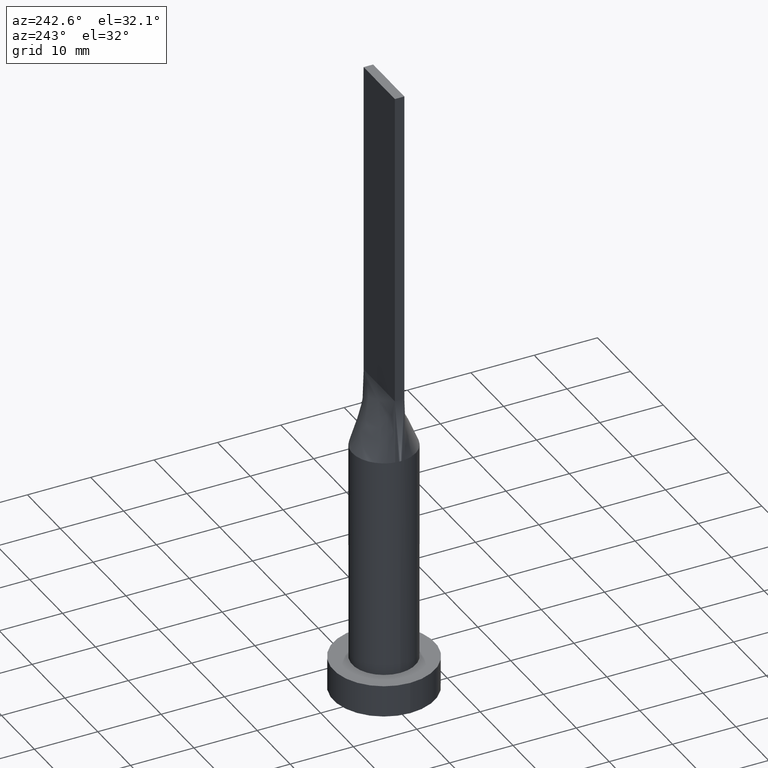
[diagram: clean part render]
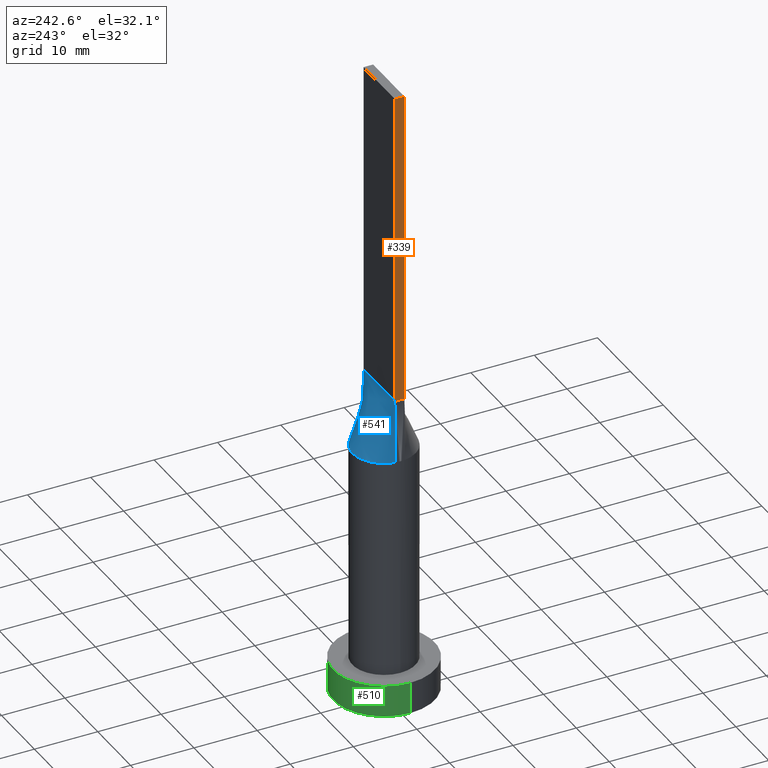
[diagram: same view with three faces highlighted in distinct colors, each labeled with its STEP entity id]
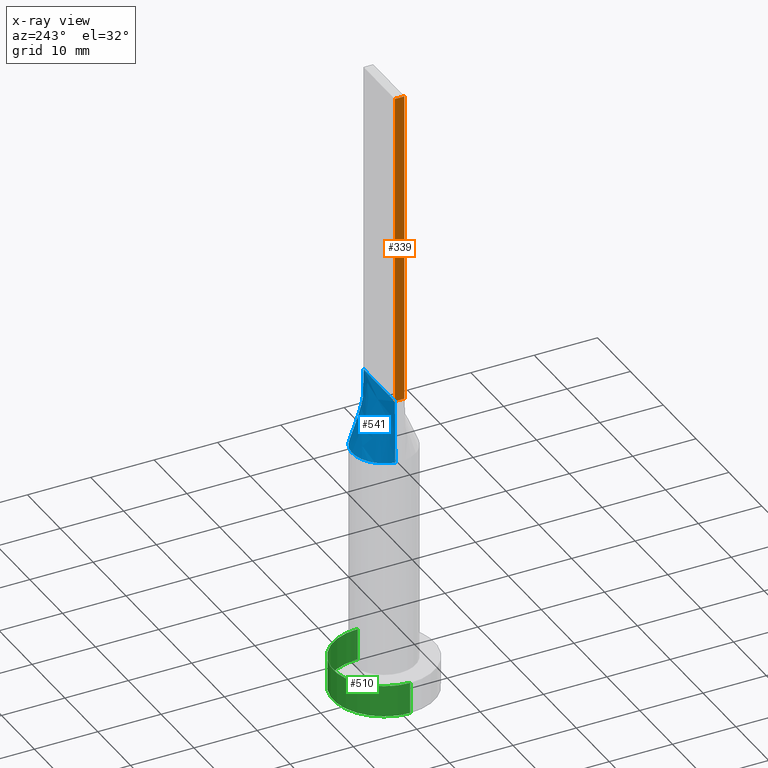
[diagram: x-ray of the same camera — body ghosted, the three highlighted faces saturated]
A machine part, auxiliary view with three faces highlighted in distinct colors.
The next image is the same camera in x-ray (body ghosted, the three faces saturated) — at least one of them is partly hidden behind the body in this view.
Their STEP definitions:

[orange] entity #339 — the highlighted planar face has unit normal (1, 0, -0).
#1 = DIRECTION ( 'NONE',  ( -0.000000000000000000, 0.000000000000000000, -1.000000000000000000 ) ) ;
#2 = CARTESIAN_POINT ( 'NONE',  ( -4.750000000000000000, 0.7500000000000002220, 100.0000000000000000 ) ) ;
#5 = DIRECTION ( 'NONE',  ( -0.000000000000000000, -0.000000000000000000, -1.000000000000000000 ) ) ;
#10 = CARTESIAN_POINT ( 'NONE',  ( -4.750000000000000000, 0.7500000000000002220, 100.0000000000000000 ) ) ;
#25 = CARTESIAN_POINT ( 'NONE',  ( -4.750000000000000000, 0.7500000000000002220, 50.00000000000000000 ) ) ;
#32 = CARTESIAN_POINT ( 'NONE',  ( -4.750000000000000000, -0.7499999999999991118, 50.00000000000000000 ) ) ;
#33 = VERTEX_POINT ( 'NONE', #2 ) ;
#49 = VECTOR ( 'NONE', #388, 1000.000000000000000 ) ;
#68 = ORIENTED_EDGE ( 'NONE', *, *, #367, .T. ) ;
#72 = ORIENTED_EDGE ( 'NONE', *, *, #420, .F. ) ;
#94 = VERTEX_POINT ( 'NONE', #514 ) ;
#140 = LINE ( 'NONE', #452, #361 ) ;
#149 = DIRECTION ( 'NONE',  ( -0.000000000000000000, -0.000000000000000000, -1.000000000000000000 ) ) ;
#206 = EDGE_CURVE ( 'NONE', #601, #443, #256, .T. ) ;
#236 = AXIS2_PLACEMENT_3D ( 'NONE', #585, #390, #1 ) ;
#256 = LINE ( 'NONE', #25, #318 ) ;
#277 = VECTOR ( 'NONE', #5, 1000.000000000000000 ) ;
#318 = VECTOR ( 'NONE', #520, 1000.000000000000000 ) ;
#339 = ADVANCED_FACE ( 'NONE', ( #403 ), #435, .F. ) ;
#361 = VECTOR ( 'NONE', #149, 1000.000000000000000 ) ;
#367 = EDGE_CURVE ( 'NONE', #33, #601, #449, .T. ) ;
#386 = EDGE_LOOP ( 'NONE', ( #483, #72, #531, #68 ) ) ;
#388 = DIRECTION ( 'NONE',  ( 0.000000000000000000, -1.000000000000000000, 0.000000000000000000 ) ) ;
#390 = DIRECTION ( 'NONE',  ( 1.000000000000000000, 0.000000000000000000, -0.000000000000000000 ) ) ;
#403 = FACE_OUTER_BOUND ( 'NONE', #386, .T. ) ;
#420 = EDGE_CURVE ( 'NONE', #94, #443, #140, .T. ) ;
#427 = LINE ( 'NONE', #616, #49 ) ;
#435 = PLANE ( 'NONE',  #236 ) ;
#443 = VERTEX_POINT ( 'NONE', #32 ) ;
#449 = LINE ( 'NONE', #10, #277 ) ;
#452 = CARTESIAN_POINT ( 'NONE',  ( -4.750000000000000000, -0.7499999999999991118, 100.0000000000000000 ) ) ;
#469 = CARTESIAN_POINT ( 'NONE',  ( -4.750000000000000000, 0.7500000000000002220, 50.00000000000000000 ) ) ;
#483 = ORIENTED_EDGE ( 'NONE', *, *, #206, .T. ) ;
#514 = CARTESIAN_POINT ( 'NONE',  ( -4.750000000000000000, -0.7499999999999991118, 100.0000000000000000 ) ) ;
#520 = DIRECTION ( 'NONE',  ( 0.000000000000000000, -1.000000000000000000, 0.000000000000000000 ) ) ;
#524 = EDGE_CURVE ( 'NONE', #33, #94, #427, .T. ) ;
#531 = ORIENTED_EDGE ( 'NONE', *, *, #524, .F. ) ;
#585 = CARTESIAN_POINT ( 'NONE',  ( -4.750000000000000000, 0.7500000000000002220, 100.0000000000000000 ) ) ;
#601 = VERTEX_POINT ( 'NONE', #469 ) ;
#616 = CARTESIAN_POINT ( 'NONE',  ( -4.750000000000000000, 0.7500000000000002220, 100.0000000000000000 ) ) ;

[blue] entity #541 — the highlighted face is a freeform B-spline surface patch.
#4 = CARTESIAN_POINT ( 'NONE',  ( 4.029217956433126524, 3.021257902548482477, 40.00000000000000711 ) ) ;
#7 = CARTESIAN_POINT ( 'NONE',  ( -4.750000000000000000, 0.7500000000000002220, 50.00000000000000000 ) ) ;
#9 = CARTESIAN_POINT ( 'NONE',  ( -4.753727492665067444, 1.629988260829202007, 40.00000000000001421 ) ) ;
#14 = CARTESIAN_POINT ( 'NONE',  ( 0.3560391241594590972, 5.000000000000001776, 40.00000000000000000 ) ) ;
#19 = CARTESIAN_POINT ( 'NONE',  ( 0.7119876437238013001, 4.961551549233180758, 40.00000000000001421 ) ) ;
#29 = ORIENTED_EDGE ( 'NONE', *, *, #589, .T. ) ;
#31 = CARTESIAN_POINT ( 'NONE',  ( 1.732223102076450250, 4.702695359254404295, 39.99999999999997868 ) ) ;
#38 = CARTESIAN_POINT ( 'NONE',  ( -0.7119876437238006339, 4.961551549233178982, 40.00000000000000711 ) ) ;
#39 = EDGE_CURVE ( 'NONE', #123, #601, #511, .T. ) ;
#41 = CARTESIAN_POINT ( 'NONE',  ( -3.958333333333336146, 0.7500000000000002220, 50.00000000000000000 ) ) ;
#46 = CARTESIAN_POINT ( 'NONE',  ( 4.938814826645345768, 0.7798128673650542853, 40.00000000000000000 ) ) ;
#53 = CARTESIAN_POINT ( 'NONE',  ( -2.177083333333339699, 0.7500000000000002220, 50.00000000000000000 ) ) ;
#57 = LINE ( 'NONE', #73, #347 ) ;
#62 = CARTESIAN_POINT ( 'NONE',  ( 1.732223102076450250, 4.702695359254404295, 39.99999999999997868 ) ) ;
#73 = CARTESIAN_POINT ( 'NONE',  ( 4.844407413322673328, 0.7649064336825270871, 45.00000000000000000 ) ) ;
#79 = CARTESIAN_POINT ( 'NONE',  ( 2.353781608410062454, 4.424438117685770777, 40.00000000000000000 ) ) ;
#82 = CARTESIAN_POINT ( 'NONE',  ( 4.753727492665065668, 1.629988260829201563, 40.00000000000001421 ) ) ;
#85 = CARTESIAN_POINT ( 'NONE',  ( -4.874625637456156291, 1.186344398896586716, 40.00000000000000000 ) ) ;
#89 = CARTESIAN_POINT ( 'NONE',  ( 0.1979166666666585250, 0.7500000000000001110, 50.00000000000000000 ) ) ;
#92 = CARTESIAN_POINT ( 'NONE',  ( -1.583333333333340587, 0.7500000000000002220, 50.00000000000000000 ) ) ;
#98 = CARTESIAN_POINT ( 'NONE',  ( -1.400150253878312823, 4.812847332616943419, 40.00000000000000711 ) ) ;
#102 = CARTESIAN_POINT ( 'NONE',  ( 1.583333333333324155, 0.7500000000000002220, 50.00000000000000000 ) ) ;
#123 = VERTEX_POINT ( 'NONE', #299 ) ;
#139 = CARTESIAN_POINT ( 'NONE',  ( 4.354166666666665186, 0.7500000000000002220, 50.00000000000000000 ) ) ;
#143 = CARTESIAN_POINT ( 'NONE',  ( 0.7916666666666568597, 0.7500000000000002220, 50.00000000000000000 ) ) ;
#153 = CARTESIAN_POINT ( 'NONE',  ( 4.332026455536839293, 2.547220758687718689, 40.00000000000000711 ) ) ;
#169 = EDGE_LOOP ( 'NONE', ( #29, #410, #615, #345 ) ) ;
#173 = CARTESIAN_POINT ( 'NONE',  ( -2.353781608410062010, 4.424438117685770777, 39.99999999999998579 ) ) ;
#175 = VERTEX_POINT ( 'NONE', #499 ) ;
#176 = CARTESIAN_POINT ( 'NONE',  ( -0.3560391241594593192, 5.000000000000000000, 39.99999999999998579 ) ) ;
#181 = CARTESIAN_POINT ( 'NONE',  ( 0.3958333333333243220, 0.7500000000000002220, 50.00000000000000000 ) ) ;
#184 = CARTESIAN_POINT ( 'NONE',  ( 0.9895833333333237114, 0.7500000000000002220, 50.00000000000000000 ) ) ;
#187 = CARTESIAN_POINT ( 'NONE',  ( 1.400150253878312823, 4.812847332616943419, 40.00000000000000711 ) ) ;
#190 = CARTESIAN_POINT ( 'NONE',  ( -4.938814826645345768, 0.7798128673650545073, 40.00000000000000000 ) ) ;
#196 = CARTESIAN_POINT ( 'NONE',  ( -2.353781608410062010, 4.424438117685770777, 39.99999999999998579 ) ) ;
#198 = CARTESIAN_POINT ( 'NONE',  ( 4.938814826645345768, 0.7798128673650538412, 40.00000000000000000 ) ) ;
#232 = CARTESIAN_POINT ( 'NONE',  ( -4.874625637456156291, 1.186344398896586716, 40.00000000000000000 ) ) ;
#237 = FACE_OUTER_BOUND ( 'NONE', #169, .T. ) ;
#239 = B_SPLINE_SURFACE_WITH_KNOTS ( 'NONE', 3, 1, ( 
 ( #46, #250 ),
 ( #448, #139 ),
 ( #525, #515 ),
 ( #153, #398 ),
 ( #4, #295 ),
 ( #512, #528 ),
 ( #346, #488 ),
 ( #621, #102 ),
 ( #242, #571 ),
 ( #62, #184 ),
 ( #187, #143 ),
 ( #472, #181 ),
 ( #14, #89 ),
 ( #393, #341 ),
 ( #383, #480 ),
 ( #98, #351 ),
 ( #475, #519 ),
 ( #196, #288 ),
 ( #566, #92 ),
 ( #245, #402 ),
 ( #281, #53 ),
 ( #444, #578 ),
 ( #451, #584 ),
 ( #9, #41 ),
 ( #232, #564 ),
 ( #190, #484 ) ),
 .UNSPECIFIED., .F., .F., .F.,
 ( 4, 2, 2, 2, 2, 2, 2, 2, 2, 2, 2, 2, 4 ),
 ( 2, 2 ),
 ( 0.000000000000000000, 0.1250000000000001388, 0.2500000000000002220, 0.3125000000000002776, 0.3750000000000002776, 0.4375000000000002776, 0.5000000000000002220, 0.5625000000000002220, 0.6250000000000001110, 0.6875000000000001110, 0.7500000000000001110, 0.8750000000000001110, 1.000000000000000000 ),
 ( 0.000000000000000000, 1.000000000000000000 ),
 .UNSPECIFIED. ) ;
#242 = CARTESIAN_POINT ( 'NONE',  ( 2.353781608410062454, 4.424438117685770777, 40.00000000000000000 ) ) ;
#245 = CARTESIAN_POINT ( 'NONE',  ( -3.168723755431092748, 3.881165404529570484, 39.99999999999997868 ) ) ;
#250 = CARTESIAN_POINT ( 'NONE',  ( 4.750000000000000000, 0.7500000000000002220, 50.00000000000000000 ) ) ;
#253 = VERTEX_POINT ( 'NONE', #198 ) ;
#254 = DIRECTION ( 'NONE',  ( -0.01887803397728732291, -0.002980742206940007865, 0.9998173508241633423 ) ) ;
#268 = CARTESIAN_POINT ( 'NONE',  ( 4.332026455536839293, 2.547220758687718689, 40.00000000000000711 ) ) ;
#273 = EDGE_CURVE ( 'NONE', #175, #601, #285, .T. ) ;
#274 = CARTESIAN_POINT ( 'NONE',  ( -4.938831943662458812, 0.7798155886440081286, 40.00000000000000000 ) ) ;
#276 = CARTESIAN_POINT ( 'NONE',  ( -1.732223102076449806, 4.702695359254402518, 39.99999999999999289 ) ) ;
#281 = CARTESIAN_POINT ( 'NONE',  ( -3.404830936252120299, 3.673931880027067720, 40.00000000000000711 ) ) ;
#285 = LINE ( 'NONE', #590, #371 ) ;
#288 = CARTESIAN_POINT ( 'NONE',  ( -1.385416666666674068, 0.7500000000000002220, 50.00000000000000000 ) ) ;
#295 = CARTESIAN_POINT ( 'NONE',  ( 2.770833333333326376, 0.7500000000000002220, 50.00000000000000000 ) ) ;
#299 = CARTESIAN_POINT ( 'NONE',  ( 4.750000000000000000, 0.7500000000000002220, 50.00000000000000000 ) ) ;
#301 = DIRECTION ( 'NONE',  ( 0.01887803397728732291, -0.002980742206940072483, 0.9998173508241633423 ) ) ;
#314 = CARTESIAN_POINT ( 'NONE',  ( 4.938814826645345768, 0.7798128673650538412, 40.00000000000000000 ) ) ;
#326 = CARTESIAN_POINT ( 'NONE',  ( -3.404830936252120299, 3.673931880027067720, 40.00000000000000711 ) ) ;
#341 = CARTESIAN_POINT ( 'NONE',  ( -0.1979166666666745400, 0.7500000000000002220, 50.00000000000000000 ) ) ;
#345 = ORIENTED_EDGE ( 'NONE', *, *, #557, .F. ) ;
#346 = CARTESIAN_POINT ( 'NONE',  ( 3.168723755431093192, 3.881165404529570040, 39.99999999999999289 ) ) ;
#347 = VECTOR ( 'NONE', #254, 1000.000000000000114 ) ;
#351 = CARTESIAN_POINT ( 'NONE',  ( -0.7916666666666754004, 0.7500000000000002220, 50.00000000000000000 ) ) ;
#360 = CARTESIAN_POINT ( 'NONE',  ( 2.643217737595826566, 4.256483892511437439, 39.99999999999998579 ) ) ;
#369 = CARTESIAN_POINT ( 'NONE',  ( 4.874625637456157179, 1.186344398896585606, 40.00000000000000000 ) ) ;
#371 = VECTOR ( 'NONE', #301, 1000.000000000000114 ) ;
#376 = CARTESIAN_POINT ( 'NONE',  ( -4.332026455536841070, 2.547220758687717801, 40.00000000000000711 ) ) ;
#378 = CARTESIAN_POINT ( 'NONE',  ( -1.400150253878312823, 4.812847332616943419, 40.00000000000000711 ) ) ;
#383 = CARTESIAN_POINT ( 'NONE',  ( -0.7119876437238006339, 4.961551549233178982, 40.00000000000000711 ) ) ;
#393 = CARTESIAN_POINT ( 'NONE',  ( -0.3560391241594593192, 5.000000000000000000, 39.99999999999998579 ) ) ;
#398 = CARTESIAN_POINT ( 'NONE',  ( 3.166666666666660745, 0.7500000000000002220, 50.00000000000000000 ) ) ;
#402 = CARTESIAN_POINT ( 'NONE',  ( -1.979166666666673402, 0.7500000000000002220, 50.00000000000000000 ) ) ;
#410 = ORIENTED_EDGE ( 'NONE', *, *, #273, .T. ) ;
#419 = CARTESIAN_POINT ( 'NONE',  ( 3.168723755431093192, 3.881165404529570040, 39.99999999999999289 ) ) ;
#421 = CARTESIAN_POINT ( 'NONE',  ( 1.400150253878312823, 4.812847332616943419, 40.00000000000000711 ) ) ;
#431 = B_SPLINE_CURVE_WITH_KNOTS ( 'NONE', 3,
 ( #314, #369, #82, #268, #593, #504, #419, #360, #79, #31, #421, #19, #604, #176, #38, #378, #276, #173, #561, #467, #326, #611, #376, #555, #85, #274 ),
 .UNSPECIFIED., .F., .F.,
 ( 4, 2, 2, 2, 2, 2, 2, 2, 2, 2, 2, 2, 4 ),
 ( 0.000000000000000000, 0.1250000000000001388, 0.2500000000000002220, 0.3125000000000002776, 0.3750000000000002776, 0.4375000000000002776, 0.5000000000000002220, 0.5625000000000002220, 0.6250000000000001110, 0.6875000000000001110, 0.7500000000000001110, 0.8750000000000001110, 1.000000000000000000 ),
 .UNSPECIFIED. ) ;
#444 = CARTESIAN_POINT ( 'NONE',  ( -4.029217956433124748, 3.021257902548482033, 40.00000000000001421 ) ) ;
#448 = CARTESIAN_POINT ( 'NONE',  ( 4.874625637456157179, 1.186344398896585606, 40.00000000000000000 ) ) ;
#451 = CARTESIAN_POINT ( 'NONE',  ( -4.332026455536841070, 2.547220758687717801, 40.00000000000000711 ) ) ;
#467 = CARTESIAN_POINT ( 'NONE',  ( -3.168723755431092748, 3.881165404529570484, 39.99999999999997868 ) ) ;
#469 = CARTESIAN_POINT ( 'NONE',  ( -4.750000000000000000, 0.7500000000000002220, 50.00000000000000000 ) ) ;
#472 = CARTESIAN_POINT ( 'NONE',  ( 0.7119876437238013001, 4.961551549233180758, 40.00000000000001421 ) ) ;
#475 = CARTESIAN_POINT ( 'NONE',  ( -1.732223102076449806, 4.702695359254402518, 39.99999999999999289 ) ) ;
#480 = CARTESIAN_POINT ( 'NONE',  ( -0.3958333333333418635, 0.7500000000000002220, 50.00000000000000000 ) ) ;
#484 = CARTESIAN_POINT ( 'NONE',  ( -4.750000000000000000, 0.7500000000000002220, 50.00000000000000000 ) ) ;
#488 = CARTESIAN_POINT ( 'NONE',  ( 1.979166666666658081, 0.7500000000000002220, 50.00000000000000000 ) ) ;
#499 = CARTESIAN_POINT ( 'NONE',  ( -4.938831943662458812, 0.7798155886440081286, 40.00000000000000000 ) ) ;
#504 = CARTESIAN_POINT ( 'NONE',  ( 3.404830936252119411, 3.673931880027066388, 40.00000000000000711 ) ) ;
#511 = LINE ( 'NONE', #7, #614 ) ;
#512 = CARTESIAN_POINT ( 'NONE',  ( 3.404830936252119411, 3.673931880027066388, 40.00000000000000711 ) ) ;
#515 = CARTESIAN_POINT ( 'NONE',  ( 3.958333333333330373, 0.7500000000000002220, 50.00000000000000000 ) ) ;
#519 = CARTESIAN_POINT ( 'NONE',  ( -0.9895833333333416970, 0.7500000000000002220, 50.00000000000000000 ) ) ;
#525 = CARTESIAN_POINT ( 'NONE',  ( 4.753727492665065668, 1.629988260829201563, 40.00000000000001421 ) ) ;
#528 = CARTESIAN_POINT ( 'NONE',  ( 2.177083333333325044, 0.7500000000000002220, 50.00000000000000000 ) ) ;
#541 = ADVANCED_FACE ( 'NONE', ( #237 ), #239, .T. ) ;
#555 = CARTESIAN_POINT ( 'NONE',  ( -4.753727492665067444, 1.629988260829202007, 40.00000000000001421 ) ) ;
#557 = EDGE_CURVE ( 'NONE', #253, #123, #57, .T. ) ;
#561 = CARTESIAN_POINT ( 'NONE',  ( -2.643217737595827455, 4.256483892511438327, 40.00000000000000000 ) ) ;
#564 = CARTESIAN_POINT ( 'NONE',  ( -4.354166666666667851, 0.7500000000000002220, 50.00000000000000000 ) ) ;
#566 = CARTESIAN_POINT ( 'NONE',  ( -2.643217737595827455, 4.256483892511438327, 40.00000000000000000 ) ) ;
#571 = CARTESIAN_POINT ( 'NONE',  ( 1.385416666666657193, 0.7500000000000002220, 50.00000000000000000 ) ) ;
#576 = DIRECTION ( 'NONE',  ( -1.000000000000000000, -0.000000000000000000, -0.000000000000000000 ) ) ;
#578 = CARTESIAN_POINT ( 'NONE',  ( -2.770833333333339255, 0.7500000000000002220, 50.00000000000000000 ) ) ;
#584 = CARTESIAN_POINT ( 'NONE',  ( -3.166666666666671848, 0.7500000000000002220, 50.00000000000000000 ) ) ;
#589 = EDGE_CURVE ( 'NONE', #253, #175, #431, .T. ) ;
#590 = CARTESIAN_POINT ( 'NONE',  ( -4.844407413322673328, 0.7649064336825274202, 45.00000000000000000 ) ) ;
#593 = CARTESIAN_POINT ( 'NONE',  ( 4.029217956433126524, 3.021257902548482477, 40.00000000000000711 ) ) ;
#601 = VERTEX_POINT ( 'NONE', #469 ) ;
#604 = CARTESIAN_POINT ( 'NONE',  ( 0.3560391241594590972, 5.000000000000001776, 40.00000000000000000 ) ) ;
#611 = CARTESIAN_POINT ( 'NONE',  ( -4.029217956433124748, 3.021257902548482033, 40.00000000000001421 ) ) ;
#614 = VECTOR ( 'NONE', #576, 1000.000000000000000 ) ;
#615 = ORIENTED_EDGE ( 'NONE', *, *, #39, .F. ) ;
#621 = CARTESIAN_POINT ( 'NONE',  ( 2.643217737595826566, 4.256483892511437439, 39.99999999999998579 ) ) ;

[green] entity #510 — the highlighted cylindrical surface (partial cylindrical patch) has radius 8 mm, axis along (-0, -0, -1).
#13 = EDGE_LOOP ( 'NONE', ( #165, #267, #454, #496 ) ) ;
#42 = LINE ( 'NONE', #157, #65 ) ;
#65 = VECTOR ( 'NONE', #476, 1000.000000000000000 ) ;
#74 = DIRECTION ( 'NONE',  ( -0.000000000000000000, -0.000000000000000000, -1.000000000000000000 ) ) ;
#88 = CARTESIAN_POINT ( 'NONE',  ( 0.000000000000000000, 0.000000000000000000, 5.000000000000000000 ) ) ;
#93 = DIRECTION ( 'NONE',  ( 0.000000000000000000, 0.000000000000000000, 1.000000000000000000 ) ) ;
#121 = CARTESIAN_POINT ( 'NONE',  ( 0.000000000000000000, 0.000000000000000000, 5.000000000000000000 ) ) ;
#147 = CARTESIAN_POINT ( 'NONE',  ( 8.000000000000000000, 9.797174393178825657E-16, 5.000000000000000000 ) ) ;
#157 = CARTESIAN_POINT ( 'NONE',  ( 8.000000000000000000, 9.797174393178825657E-16, 5.000000000000000000 ) ) ;
#165 = ORIENTED_EDGE ( 'NONE', *, *, #470, .F. ) ;
#178 = EDGE_CURVE ( 'NONE', #570, #284, #490, .T. ) ;
#186 = VERTEX_POINT ( 'NONE', #209 ) ;
#191 = CARTESIAN_POINT ( 'NONE',  ( -8.000000000000000000, 0.000000000000000000, 0.000000000000000000 ) ) ;
#209 = CARTESIAN_POINT ( 'NONE',  ( 8.000000000000000000, 9.797174393178825657E-16, 0.000000000000000000 ) ) ;
#212 = CARTESIAN_POINT ( 'NONE',  ( -8.000000000000000000, 0.000000000000000000, 5.000000000000000000 ) ) ;
#222 = CIRCLE ( 'NONE', #333, 8.000000000000000000 ) ;
#227 = EDGE_CURVE ( 'NONE', #186, #284, #222, .T. ) ;
#229 = AXIS2_PLACEMENT_3D ( 'NONE', #88, #374, #554 ) ;
#252 = CARTESIAN_POINT ( 'NONE',  ( -8.000000000000000000, 0.000000000000000000, 5.000000000000000000 ) ) ;
#264 = DIRECTION ( 'NONE',  ( 0.000000000000000000, 0.000000000000000000, 1.000000000000000000 ) ) ;
#267 = ORIENTED_EDGE ( 'NONE', *, *, #270, .T. ) ;
#270 = EDGE_CURVE ( 'NONE', #553, #186, #42, .T. ) ;
#282 = CARTESIAN_POINT ( 'NONE',  ( 0.000000000000000000, 0.000000000000000000, 0.000000000000000000 ) ) ;
#284 = VERTEX_POINT ( 'NONE', #191 ) ;
#320 = DIRECTION ( 'NONE',  ( 1.000000000000000000, 0.000000000000000000, 0.000000000000000000 ) ) ;
#333 = AXIS2_PLACEMENT_3D ( 'NONE', #282, #93, #348 ) ;
#348 = DIRECTION ( 'NONE',  ( 1.000000000000000000, 0.000000000000000000, 0.000000000000000000 ) ) ;
#374 = DIRECTION ( 'NONE',  ( -0.000000000000000000, -0.000000000000000000, -1.000000000000000000 ) ) ;
#382 = FACE_OUTER_BOUND ( 'NONE', #13, .T. ) ;
#413 = VECTOR ( 'NONE', #74, 1000.000000000000000 ) ;
#436 = CIRCLE ( 'NONE', #477, 8.000000000000000000 ) ;
#454 = ORIENTED_EDGE ( 'NONE', *, *, #227, .T. ) ;
#470 = EDGE_CURVE ( 'NONE', #553, #570, #436, .T. ) ;
#476 = DIRECTION ( 'NONE',  ( -0.000000000000000000, -0.000000000000000000, -1.000000000000000000 ) ) ;
#477 = AXIS2_PLACEMENT_3D ( 'NONE', #121, #264, #320 ) ;
#490 = LINE ( 'NONE', #252, #413 ) ;
#496 = ORIENTED_EDGE ( 'NONE', *, *, #178, .F. ) ;
#510 = ADVANCED_FACE ( 'NONE', ( #382 ), #618, .T. ) ;
#553 = VERTEX_POINT ( 'NONE', #147 ) ;
#554 = DIRECTION ( 'NONE',  ( -1.000000000000000000, 0.000000000000000000, 0.000000000000000000 ) ) ;
#570 = VERTEX_POINT ( 'NONE', #212 ) ;
#618 = CYLINDRICAL_SURFACE ( 'NONE', #229, 8.000000000000000000 ) ;